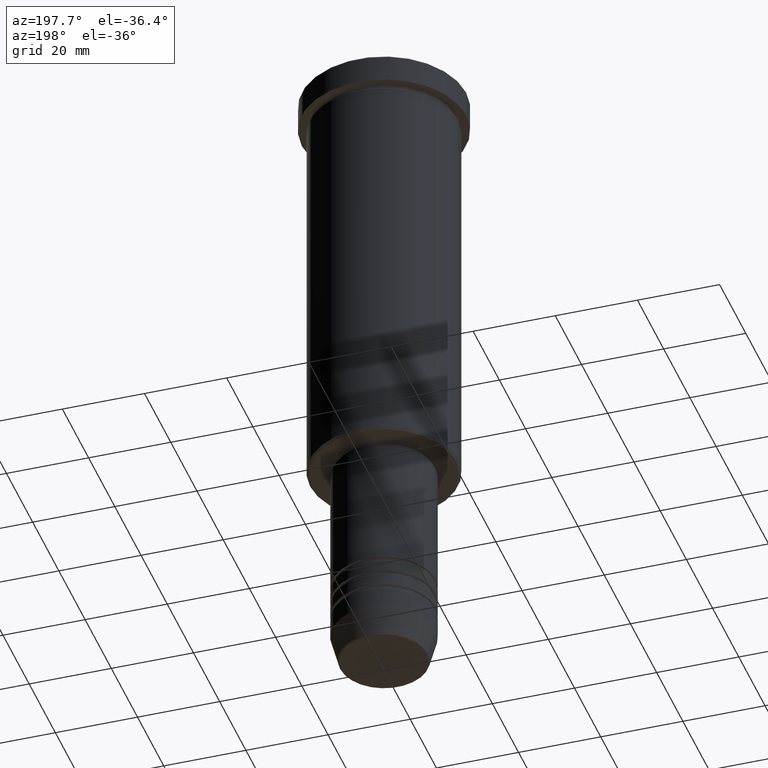
[diagram: clean part render]
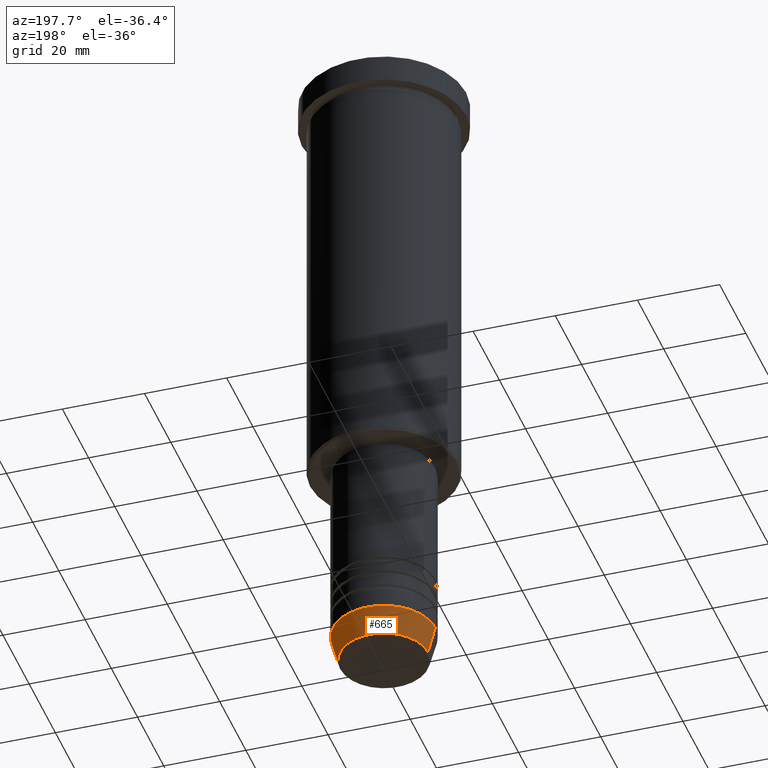
[diagram: same view with one face highlighted and labeled with its STEP entity id]
A machine part, auxiliary view. The second image highlights one B-rep face of the part: STEP entity #665.
In plain terms, the highlighted conical surface has half-angle 15 deg.
Its self-contained STEP definition (entity closure, byte-faithful):
#35 = CIRCLE ( 'NONE', #700, 12.50000000000000000 ) ;
#44 = DIRECTION ( 'NONE',  ( -0.000000000000000000, -0.000000000000000000, 1.000000000000000000 ) ) ;
#125 = DIRECTION ( 'NONE',  ( 1.000000000000000000, 0.000000000000000000, 0.000000000000000000 ) ) ;
#150 = DIRECTION ( 'NONE',  ( 0.2588190451025203509, 0.000000000000000000, 0.9659258262890684232 ) ) ;
#172 = AXIS2_PLACEMENT_3D ( 'NONE', #934, #307, #125 ) ;
#180 = ORIENTED_EDGE ( 'NONE', *, *, #182, .F. ) ;
#182 = EDGE_CURVE ( 'NONE', #1110, #647, #35, .T. ) ;
#216 = DIRECTION ( 'NONE',  ( 1.000000000000000000, 0.000000000000000000, 0.000000000000000000 ) ) ;
#225 = DIRECTION ( 'NONE',  ( -0.2588190451025203509, 3.169619151431760011E-17, 0.9659258262890684232 ) ) ;
#237 = EDGE_LOOP ( 'NONE', ( #517, #435, #180, #943 ) ) ;
#285 = CARTESIAN_POINT ( 'NONE',  ( -12.50000000000000000, 1.530808498934191521E-15, -153.0000000000000000 ) ) ;
#290 = FACE_OUTER_BOUND ( 'NONE', #237, .T. ) ;
#307 = DIRECTION ( 'NONE',  ( -0.000000000000000000, -0.000000000000000000, 1.000000000000000000 ) ) ;
#327 = DIRECTION ( 'NONE',  ( -0.000000000000000000, -0.000000000000000000, 1.000000000000000000 ) ) ;
#339 = VECTOR ( 'NONE', #150, 1000.000000000000000 ) ;
#408 = CARTESIAN_POINT ( 'NONE',  ( -12.50000000000000000, 1.530808498934191521E-15, -153.0000000000000000 ) ) ;
#435 = ORIENTED_EDGE ( 'NONE', *, *, #966, .T. ) ;
#495 = AXIS2_PLACEMENT_3D ( 'NONE', #956, #327, #1042 ) ;
#499 = LINE ( 'NONE', #408, #952 ) ;
#504 = EDGE_CURVE ( 'NONE', #936, #1110, #1053, .T. ) ;
#517 = ORIENTED_EDGE ( 'NONE', *, *, #1039, .T. ) ;
#647 = VERTEX_POINT ( 'NONE', #285 ) ;
#665 = ADVANCED_FACE ( 'NONE', ( #290 ), #682, .T. ) ;
#682 = CONICAL_SURFACE ( 'NONE', #172, 12.50000000000000000, 0.2617993877991490193 ) ;
#700 = AXIS2_PLACEMENT_3D ( 'NONE', #848, #44, #216 ) ;
#784 = CARTESIAN_POINT ( 'NONE',  ( 10.72365507213719660, 0.000000000000000000, -159.6294095225512706 ) ) ;
#848 = CARTESIAN_POINT ( 'NONE',  ( 0.000000000000000000, 0.000000000000000000, -153.0000000000000000 ) ) ;
#868 = CARTESIAN_POINT ( 'NONE',  ( -10.72365507213719660, 1.422038742429750713E-15, -159.6294095225512706 ) ) ;
#888 = CARTESIAN_POINT ( 'NONE',  ( 12.50000000000000000, 0.000000000000000000, -153.0000000000000000 ) ) ;
#899 = VERTEX_POINT ( 'NONE', #868 ) ;
#934 = CARTESIAN_POINT ( 'NONE',  ( 0.000000000000000000, 0.000000000000000000, -153.0000000000000000 ) ) ;
#936 = VERTEX_POINT ( 'NONE', #784 ) ;
#939 = CARTESIAN_POINT ( 'NONE',  ( 12.50000000000000000, 0.000000000000000000, -153.0000000000000000 ) ) ;
#943 = ORIENTED_EDGE ( 'NONE', *, *, #504, .F. ) ;
#952 = VECTOR ( 'NONE', #225, 1000.000000000000000 ) ;
#956 = CARTESIAN_POINT ( 'NONE',  ( 0.000000000000000000, 0.000000000000000000, -159.6294095225512706 ) ) ;
#966 = EDGE_CURVE ( 'NONE', #899, #647, #499, .T. ) ;
#1011 = CIRCLE ( 'NONE', #495, 10.72365507213719660 ) ;
#1039 = EDGE_CURVE ( 'NONE', #936, #899, #1011, .T. ) ;
#1042 = DIRECTION ( 'NONE',  ( 1.000000000000000000, 0.000000000000000000, 0.000000000000000000 ) ) ;
#1053 = LINE ( 'NONE', #888, #339 ) ;
#1110 = VERTEX_POINT ( 'NONE', #939 ) ;